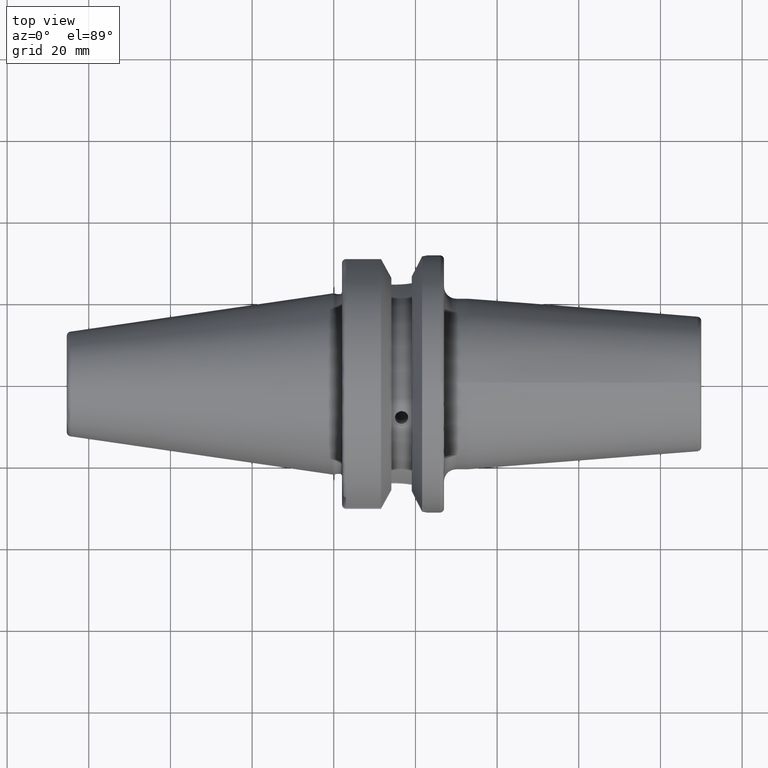
[diagram: clean part render]
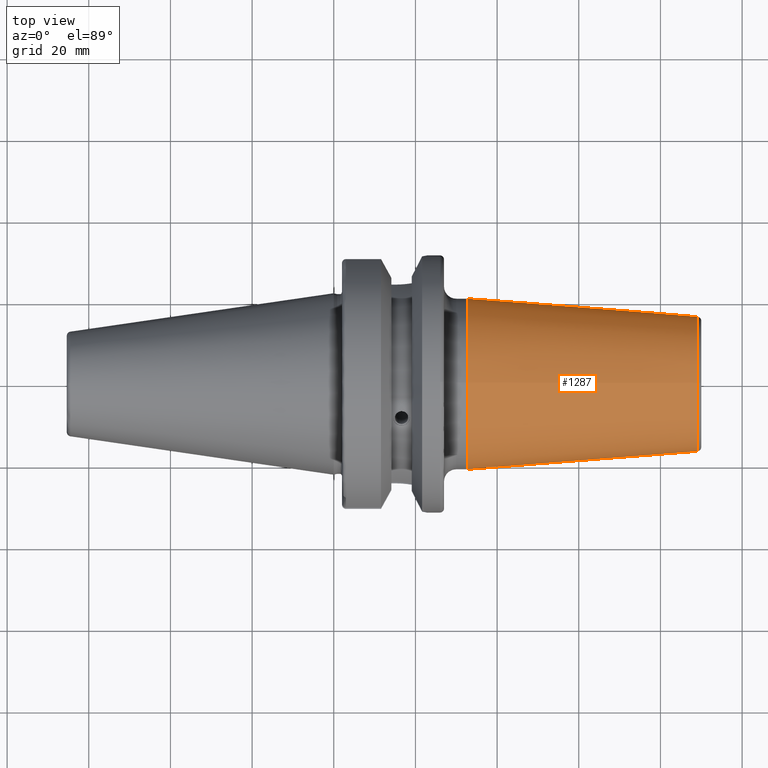
[diagram: same view with one face highlighted and labeled with its STEP entity id]
A machine part, top view. The second image highlights one B-rep face of the part: STEP entity #1287.
In plain terms, the highlighted conical surface has half-angle 4.5 deg.
Its self-contained STEP definition (entity closure, byte-faithful):
#126=LINE('',#2014,#186);
#186=VECTOR('',#1579,18.75);
#246=CONICAL_SURFACE('',#1381,18.75,0.0785398163397447);
#259=FACE_OUTER_BOUND('',#328,.T.);
#328=EDGE_LOOP('',(#872,#873,#874,#875,#876,#877));
#415=CIRCLE('',#1378,16.5725268420749);
#416=CIRCLE('',#1379,16.5725268420749);
#418=CIRCLE('',#1382,21.);
#419=CIRCLE('',#1383,21.);
#516=VERTEX_POINT('',#2006);
#517=VERTEX_POINT('',#2008);
#518=VERTEX_POINT('',#2013);
#519=VERTEX_POINT('',#2015);
#662=EDGE_CURVE('',#516,#517,#415,.T.);
#663=EDGE_CURVE('',#517,#516,#416,.T.);
#665=EDGE_CURVE('',#516,#518,#126,.T.);
#666=EDGE_CURVE('',#518,#519,#418,.T.);
#667=EDGE_CURVE('',#519,#518,#419,.T.);
#872=ORIENTED_EDGE('',*,*,#663,.F.);
#873=ORIENTED_EDGE('',*,*,#662,.F.);
#874=ORIENTED_EDGE('',*,*,#665,.T.);
#875=ORIENTED_EDGE('',*,*,#666,.T.);
#876=ORIENTED_EDGE('',*,*,#667,.T.);
#877=ORIENTED_EDGE('',*,*,#665,.F.);
#1287=ADVANCED_FACE('',(#259),#246,.T.);
#1378=AXIS2_PLACEMENT_3D('',#2009,#1571,#1572);
#1379=AXIS2_PLACEMENT_3D('',#2010,#1573,#1574);
#1381=AXIS2_PLACEMENT_3D('',#2012,#1577,#1578);
#1382=AXIS2_PLACEMENT_3D('',#2016,#1580,#1581);
#1383=AXIS2_PLACEMENT_3D('',#2017,#1582,#1583);
#1571=DIRECTION('center_axis',(1.,0.,0.));
#1572=DIRECTION('ref_axis',(0.,0.,1.));
#1573=DIRECTION('center_axis',(1.,0.,0.));
#1574=DIRECTION('ref_axis',(0.,0.,1.));
#1577=DIRECTION('center_axis',(-1.,0.,0.));
#1578=DIRECTION('ref_axis',(0.,0.,-1.));
#1579=DIRECTION('',(-0.996917333733128,-9.6084680447101E-18,0.0784590957278449));
#1580=DIRECTION('center_axis',(1.,0.,0.));
#1581=DIRECTION('ref_axis',(0.,0.,-1.));
#1582=DIRECTION('center_axis',(1.,0.,0.));
#1583=DIRECTION('ref_axis',(0.,0.,-1.));
#2006=CARTESIAN_POINT('',(89.0784590957279,-2.02954919509306E-15,16.5725268420749));
#2008=CARTESIAN_POINT('',(89.0784590957279,-2.46519032881566E-31,-16.5725268420749));
#2009=CARTESIAN_POINT('Origin',(89.0784590957279,-2.02954919509307E-15,
0.));
#2010=CARTESIAN_POINT('Origin',(89.0784590957279,-2.02954919509307E-15,
0.));
#2012=CARTESIAN_POINT('Origin',(61.4110393436069,0.,0.));
#2013=CARTESIAN_POINT('',(32.8220786872138,-2.57175827820944E-15,21.));
#2014=CARTESIAN_POINT('',(61.4110393436069,-2.29621274840129E-15,18.75));
#2015=CARTESIAN_POINT('',(32.8220786872138,0.,-21.));
#2016=CARTESIAN_POINT('Origin',(32.8220786872138,0.,0.));
#2017=CARTESIAN_POINT('Origin',(32.8220786872138,0.,0.));